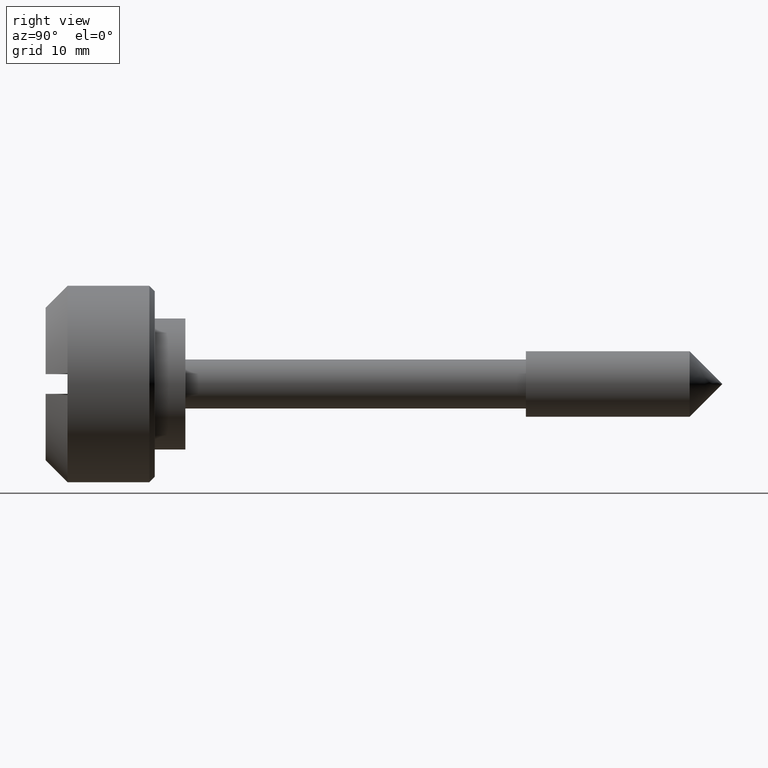
[diagram: clean part render]
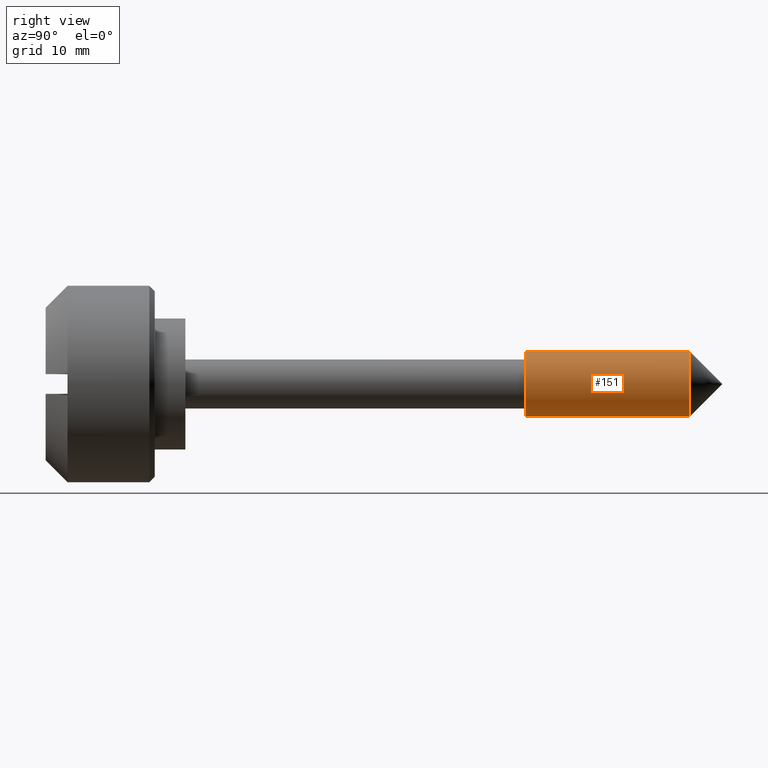
[diagram: same view with one face highlighted and labeled with its STEP entity id]
A machine part, right view. The second image highlights one B-rep face of the part: STEP entity #151.
In plain terms, the highlighted cylindrical surface (edge-blend (fillet) strip) has radius 3 mm, axis along (0, 1, 0).
Its self-contained STEP definition (entity closure, byte-faithful):
#151=ADVANCED_FACE('',(#550),#549,.T.);
#549=CYLINDRICAL_SURFACE('',#806,3.00000000000E+00);
#550=FACE_OUTER_BOUND('',#807,.T.);
#803=CARTESIAN_POINT('',(2.50000000000E+01,0.00000000000E+00,0.00000000000E+00));
#804=DIRECTION('',(1.00000000000E+00,-0.00000000000E+00,-0.00000000000E+00));
#805=DIRECTION('',(-0.00000000000E+00,-0.00000000000E+00,-1.00000000000E+00));
#806=AXIS2_PLACEMENT_3D('',#803,#804,#805);
#807=EDGE_LOOP('',(#1020,#1021,#1022,#1023));
#1020=ORIENTED_EDGE('',*,*,#1105,.F.);
#1021=ORIENTED_EDGE('',*,*,#1125,.T.);
#1022=ORIENTED_EDGE('',*,*,#1127,.T.);
#1023=ORIENTED_EDGE('',*,*,#1126,.F.);
#1105=EDGE_CURVE('',#1628,#1627,#1635,.T.);
#1125=EDGE_CURVE('',#1628,#1757,#1764,.T.);
#1126=EDGE_CURVE('',#1627,#1756,#1770,.T.);
#1127=EDGE_CURVE('',#1757,#1756,#1776,.T.);
#1627=VERTEX_POINT('',#2104);
#1628=VERTEX_POINT('',#2105);
#1635=CIRCLE('',#2113,3.00000000000E+00);
#1756=VERTEX_POINT('',#2173);
#1757=VERTEX_POINT('',#2174);
#1764=(BOUNDED_CURVE() B_SPLINE_CURVE(1,(#2179,#2180),.UNSPECIFIED.,.F.,.F.) B_SPLINE_CURVE_WITH_KNOTS((2,2),(8.33333328360E-02,9.16666666871E-01),.UNSPECIFIED.) CURVE() GEOMETRIC_REPRESENTATION_ITEM() RATIONAL_B_SPLINE_CURVE((1.00000000000E+00,1.00000000000E+00)) REPRESENTATION_ITEM('') );
#1770=(BOUNDED_CURVE() B_SPLINE_CURVE(1,(#2181,#2182),.UNSPECIFIED.,.F.,.F.) B_SPLINE_CURVE_WITH_KNOTS((2,2),(8.33333333333E-02,9.16666666667E-01),.UNSPECIFIED.) CURVE() GEOMETRIC_REPRESENTATION_ITEM() RATIONAL_B_SPLINE_CURVE((7.50000000000E-01,7.50000000000E-01)) REPRESENTATION_ITEM('') );
#1776=CIRCLE('',#2186,3.00000000000E+00);
#2104=CARTESIAN_POINT('',(3.20000000000E+01,0.00000000000E+00,3.00000000000E+00));
#2105=CARTESIAN_POINT('',(3.20000000000E+01,-1.48029736617E-16,-3.00000000000E+00));
#2110=CARTESIAN_POINT('',(3.20000000000E+01,0.00000000000E+00,0.00000000000E+00));
#2111=DIRECTION('',(-1.00000000000E+00,0.00000000000E+00,0.00000000000E+00));
#2112=DIRECTION('',(0.00000000000E+00,-1.22460635382E-16,1.00000000000E+00));
#2113=AXIS2_PLACEMENT_3D('',#2110,#2111,#2112);
#2173=CARTESIAN_POINT('',(4.70000000000E+01,0.00000000000E+00,3.00000000000E+00));
#2174=CARTESIAN_POINT('',(4.70000000000E+01,-1.48029736617E-16,-3.00000000000E+00));
#2179=CARTESIAN_POINT('',(3.19999999910E+01,0.00000000000E+00,-3.00000000000E+00));
#2180=CARTESIAN_POINT('',(4.70000000037E+01,0.00000000000E+00,-3.00000000000E+00));
#2181=CARTESIAN_POINT('',(3.20000000000E+01,-1.48029736617E-16,3.00000000000E+00));
#2182=CARTESIAN_POINT('',(4.70000000000E+01,-1.48029736617E-16,3.00000000000E+00));
#2183=CARTESIAN_POINT('',(4.70000000000E+01,0.00000000000E+00,0.00000000000E+00));
#2184=DIRECTION('',(-1.00000000000E+00,0.00000000000E+00,0.00000000000E+00));
#2185=DIRECTION('',(0.00000000000E+00,-1.22460635382E-16,1.00000000000E+00));
#2186=AXIS2_PLACEMENT_3D('',#2183,#2184,#2185);